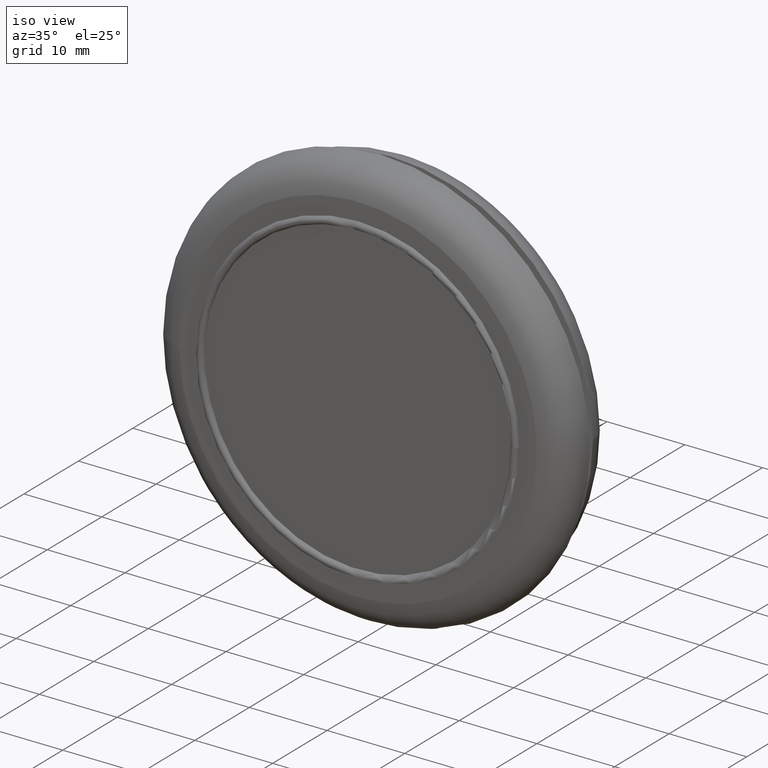
[diagram: clean part render]
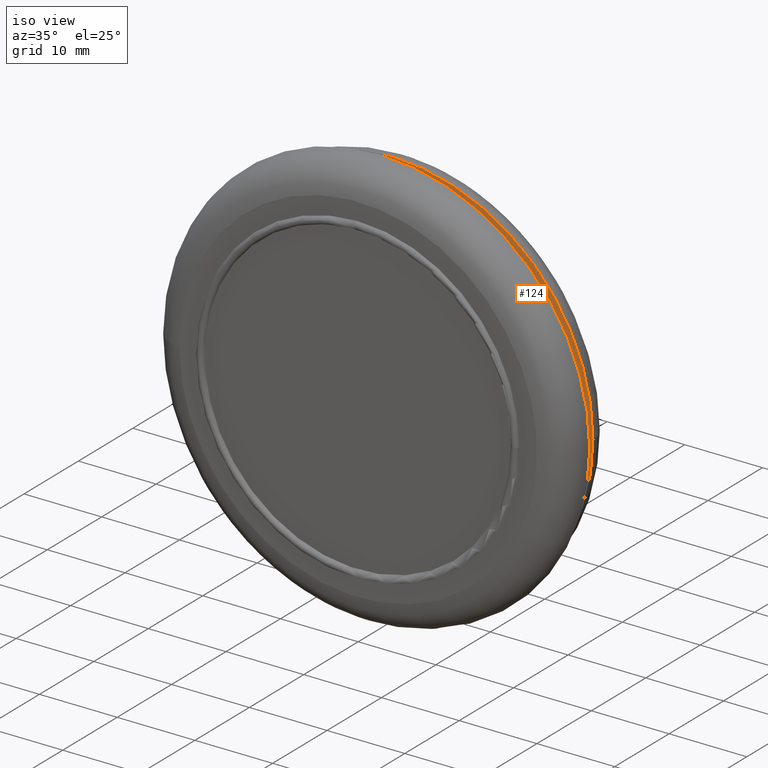
[diagram: same view with one face highlighted and labeled with its STEP entity id]
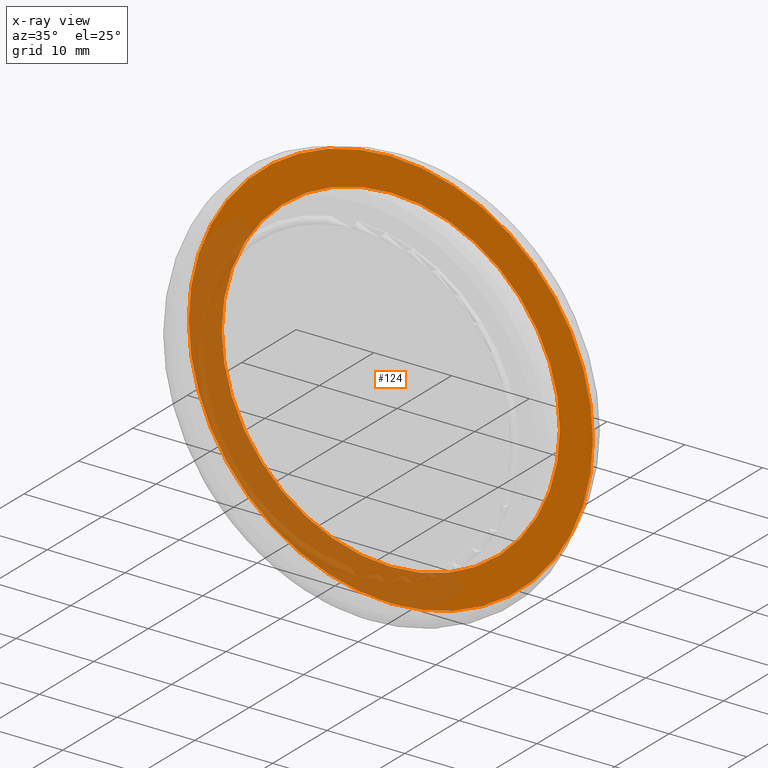
[diagram: x-ray of the same camera — body ghosted, the highlighted face saturated]
A machine part, iso view. The second image highlights one B-rep face of the part: STEP entity #124.
The next image is the same camera in x-ray: the body ghosted, the highlighted face saturated — about 39% of this face is hidden behind the body in this view.
In plain terms, the highlighted planar face has unit normal (0, 1, 0).
Its self-contained STEP definition (entity closure, byte-faithful):
#21=PLANE('',#145);
#29=FACE_BOUND('',#58,.T.);
#40=FACE_OUTER_BOUND('',#57,.T.);
#57=EDGE_LOOP('',(#107));
#58=EDGE_LOOP('',(#108));
#69=CIRCLE('',#142,26.);
#71=CIRCLE('',#146,21.75);
#79=VERTEX_POINT('',#214);
#81=VERTEX_POINT('',#220);
#89=EDGE_CURVE('',#79,#79,#69,.T.);
#91=EDGE_CURVE('',#81,#81,#71,.T.);
#107=ORIENTED_EDGE('',*,*,#89,.F.);
#108=ORIENTED_EDGE('',*,*,#91,.T.);
#124=ADVANCED_FACE('',(#40,#29),#21,.F.);
#142=AXIS2_PLACEMENT_3D('',#215,#178,#179);
#145=AXIS2_PLACEMENT_3D('',#219,#184,#185);
#146=AXIS2_PLACEMENT_3D('',#221,#186,#187);
#178=DIRECTION('center_axis',(0.,1.,0.));
#179=DIRECTION('ref_axis',(1.,0.,0.));
#184=DIRECTION('center_axis',(0.,1.,0.));
#185=DIRECTION('ref_axis',(0.,0.,1.));
#186=DIRECTION('center_axis',(0.,1.,0.));
#187=DIRECTION('ref_axis',(1.,0.,0.));
#214=CARTESIAN_POINT('',(26.,6.,0.));
#215=CARTESIAN_POINT('Origin',(0.,6.,0.));
#219=CARTESIAN_POINT('Origin',(-1.40403042148209E-15,6.,5.69345140833414E-16));
#220=CARTESIAN_POINT('',(21.75,6.,0.));
#221=CARTESIAN_POINT('Origin',(0.,6.,0.));